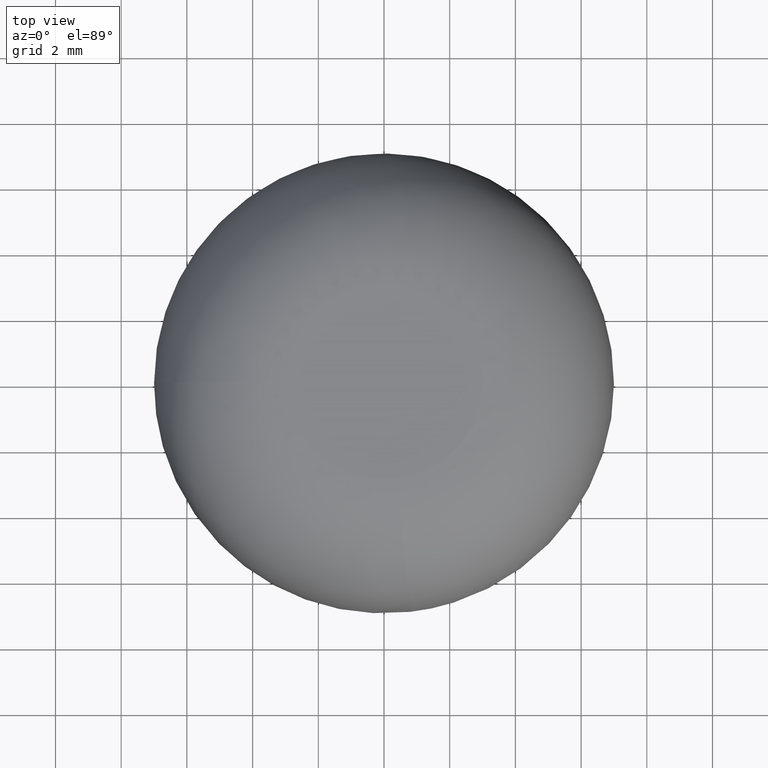
[diagram: clean part render]
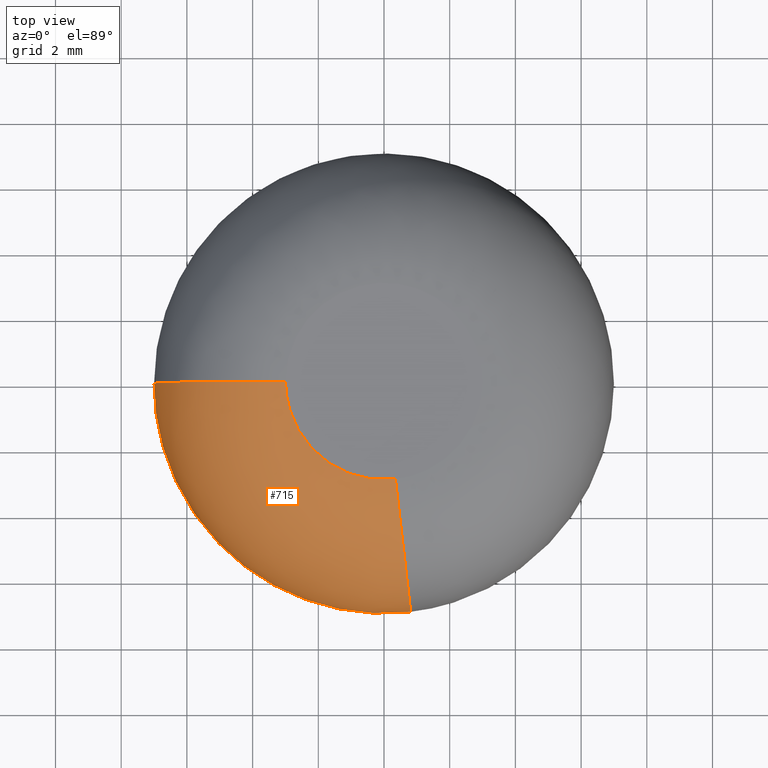
[diagram: same view with one face highlighted and labeled with its STEP entity id]
A machine part, top view. The second image highlights one B-rep face of the part: STEP entity #715.
In plain terms, the highlighted face is a freeform B-spline surface patch.
Its self-contained STEP definition (entity closure, byte-faithful):
#602=CARTESIAN_POINT('',(0.806954198958936,-6.942044220110153,5.900712580109018));
#603=CARTESIAN_POINT('',(0.808248821267288,-6.953181562631603,6.050146263777082));
#604=CARTESIAN_POINT('',(0.808248821267288,-6.953181562631602,6.200000000000000));
#605=CARTESIAN_POINT('',(0.808248821267288,-6.953181562631604,8.964321978561884));
#606=CARTESIAN_POINT('',(0.509683272658590,-4.384689765058708,9.941657386773940));
#607=CARTESIAN_POINT('',(0.412667969040947,-3.550089079406459,10.259230836911797));
#608=CARTESIAN_POINT('',(0.309289451756118,-2.660747107673029,10.187071919673683));
#609=CARTESIAN_POINT('',(0.404830924571384,-6.988787665481204,5.900712580109015));
#610=CARTESIAN_POINT('',(0.405480407710251,-6.999999999999999,6.050146263777081));
#611=CARTESIAN_POINT('',(0.405480407710251,-7.0,6.200000000000000));
#612=CARTESIAN_POINT('',(0.405480407710251,-7.000000000000003,8.964321978561880));
#613=CARTESIAN_POINT('',(0.255696730713023,-4.414213562373094,9.941657386773940));
#614=CARTESIAN_POINT('',(0.207026316565884,-3.573993190311556,10.259230836911795));
#615=CARTESIAN_POINT('',(0.155163620037099,-2.678662938101394,10.187071919673681));
#616=CARTESIAN_POINT('',(0.0,-6.988787665481205,5.900712580109015));
#617=CARTESIAN_POINT('',(0.0,-7.0,6.050146263777080));
#618=CARTESIAN_POINT('',(0.0,-7.0,6.200000000000000));
#619=CARTESIAN_POINT('',(0.0,-7.000000000000002,8.964321978561882));
#620=CARTESIAN_POINT('',(0.0,-4.414213562373095,9.941657386773940));
#621=CARTESIAN_POINT('',(0.0,-3.573993190311557,10.259230836911797));
#622=CARTESIAN_POINT('',(0.0,-2.678662938101394,10.187071919673683));
#623=CARTESIAN_POINT('',(-6.988787665481203,-6.988787665481203,5.900712580109016));
#624=CARTESIAN_POINT('',(-6.999999999999998,-6.999999999999998,6.050146263777080));
#625=CARTESIAN_POINT('',(-6.999999999999999,-6.999999999999999,6.200000000000000));
#626=CARTESIAN_POINT('',(-7.0,-7.0,8.964321978561884));
#627=CARTESIAN_POINT('',(-4.414213562373095,-4.414213562373095,9.941657386773938));
#628=CARTESIAN_POINT('',(-3.573993190311556,-3.573993190311556,10.259230836911799));
#629=CARTESIAN_POINT('',(-2.678662938101394,-2.678662938101394,10.187071919673681));
#630=CARTESIAN_POINT('',(-6.988787665481205,0.0,5.900712580109015));
#631=CARTESIAN_POINT('',(-7.0,0.0,6.050146263777080));
#632=CARTESIAN_POINT('',(-7.0,0.0,6.200000000000000));
#633=CARTESIAN_POINT('',(-7.000000000000002,0.0,8.964321978561882));
#634=CARTESIAN_POINT('',(-4.414213562373095,0.0,9.941657386773940));
#635=CARTESIAN_POINT('',(-3.573993190311557,0.0,10.259230836911797));
#636=CARTESIAN_POINT('',(-2.678662938101394,0.0,10.187071919673683));
#644=(BOUNDED_SURFACE()B_SPLINE_SURFACE(2,2,((#602,#609,#616,#623,#630),(#603,#610,#617,#624,#631),(#604,#611,#618,#625,#632),(#605,#612,#619,#626,#633),(#606,#613,#620,#627,#634),(#607,#614,#621,#628,#635),(#608,#615,#622,#629,#636)),.UNSPECIFIED.,.F.,.F.,.U.)B_SPLINE_SURFACE_WITH_KNOTS((3,2,2,3),(3,2,3),(0.0,0.325068791231680,5.315804910756384,7.158021290805312),(0.0,0.927837494860101,12.525817241306759),.UNSPECIFIED.)GEOMETRIC_REPRESENTATION_ITEM()RATIONAL_B_SPLINE_SURFACE(((0.936220649157617,0.955477984758752,0.978403380119462,0.691835664818311,0.978403380119462),(0.945833493504668,0.965288557888904,0.988449344615309,0.698939234436884,0.988449344615309),(0.956886155731908,0.976568564840903,1.0,0.707106781186548,1.0),(0.787196163698553,0.803388180742728,0.822664388008036,0.581711567401163,0.822664388008036),(0.956886155731908,0.976568564840903,1.0,0.707106781186548,1.0),(0.894248966474146,0.912642976982091,0.934540604561415,0.660819998779552,0.934540604561415),(0.877853956040242,0.895910733847334,0.917406893998570,0.648704635853677,0.917406893998570)))REPRESENTATION_ITEM('')SURFACE());
#645=CARTESIAN_POINT('',(0.346392114872776,-2.979934009164752,10.199999999999770));
#646=VERTEX_POINT('',#645);
#647=CARTESIAN_POINT('',(-3.000000384556083,0.0,10.199999999999960));
#648=VERTEX_POINT('',#647);
#649=CARTESIAN_POINT('',(0.346392114872776,-2.979934009164752,10.199999999999767));
#650=CARTESIAN_POINT('',(0.173777254250531,-3.000000000000000,10.200000000000001));
#651=CARTESIAN_POINT('',(0.0,-3.0,10.199999999999999));
#652=CARTESIAN_POINT('',(-3.0,-3.0,10.200000000000001));
#653=CARTESIAN_POINT('',(-3.000000384556083,0.0,10.199999999999960));
#661=(BOUNDED_CURVE()B_SPLINE_CURVE(2,(#649,#650,#651,#652,#653),.UNSPECIFIED.,.F.,.U.)B_SPLINE_CURVE_WITH_KNOTS((3,2,3),(0.730000026192411,0.750000000000000,1.0),.UNSPECIFIED.)CURVE()GEOMETRIC_REPRESENTATION_ITEM()RATIONAL_B_SPLINE_CURVE((0.956886169743681,0.976568573181242,1.0,0.707106781186548,1.0))REPRESENTATION_ITEM(''));
#662=EDGE_CURVE('',#646,#648,#661,.T.);
#663=ORIENTED_EDGE('',*,*,#662,.T.);
#664=CARTESIAN_POINT('',(-7.0,0.0,6.199999999999989));
#665=VERTEX_POINT('',#664);
#666=CARTESIAN_POINT('',(-6.999999999999998,0.0,6.199999999999975));
#667=CARTESIAN_POINT('',(-7.000000000000018,0.0,8.964321978561877));
#668=CARTESIAN_POINT('',(-4.414213562373095,0.0,9.941657386773940));
#669=CARTESIAN_POINT('',(-3.730703626449663,0.0,10.199999859501812));
#670=CARTESIAN_POINT('',(-3.000000384556083,0.0,10.199999999999964));
#678=(BOUNDED_CURVE()B_SPLINE_CURVE(2,(#666,#667,#668,#669,#670),.UNSPECIFIED.,.F.,.U.)B_SPLINE_CURVE_WITH_KNOTS((3,2,3),(0.499999999999999,0.750000000000000,0.825998069180932),.UNSPECIFIED.)CURVE()GEOMETRIC_REPRESENTATION_ITEM()RATIONAL_B_SPLINE_CURVE((1.000000000000002,0.822664388008035,1.0,0.946091343566368,0.924958317541489))REPRESENTATION_ITEM(''));
#679=EDGE_CURVE('',#665,#648,#678,.T.);
#680=ORIENTED_EDGE('',*,*,#679,.F.);
#681=CARTESIAN_POINT('',(0.808249330410697,-6.953181503447942,6.199999997219420));
#682=VERTEX_POINT('',#681);
#683=CARTESIAN_POINT('',(0.808249330410697,-6.953181503447942,6.199999997219419));
#684=CARTESIAN_POINT('',(0.405480526026914,-7.000000000000001,6.200000000000001));
#685=CARTESIAN_POINT('',(0.0,-7.0,6.200000000000000));
#686=CARTESIAN_POINT('',(-6.999999999999999,-6.999999999999999,6.199999999999999));
#687=CARTESIAN_POINT('',(-7.0,0.0,6.200000000000000));
#695=(BOUNDED_CURVE()B_SPLINE_CURVE(2,(#683,#684,#685,#686,#687),.UNSPECIFIED.,.F.,.U.)B_SPLINE_CURVE_WITH_KNOTS((3,2,3),(0.730000013374359,0.750000000000000,1.0),.UNSPECIFIED.)CURVE()GEOMETRIC_REPRESENTATION_ITEM()RATIONAL_B_SPLINE_CURVE((0.956886144514642,0.976568558163960,1.0,0.707106781186547,1.0))REPRESENTATION_ITEM(''));
#696=EDGE_CURVE('',#682,#665,#695,.T.);
#697=ORIENTED_EDGE('',*,*,#696,.F.);
#698=CARTESIAN_POINT('',(0.808249330410697,-6.953181503447942,6.199999997219420));
#699=CARTESIAN_POINT('',(0.808249605733270,-6.953181475313077,8.964321977109282));
#700=CARTESIAN_POINT('',(0.509683767064527,-4.384689707588152,9.941657386773938));
#701=CARTESIAN_POINT('',(0.430762722174464,-3.705750499391332,10.200000176701661));
#702=CARTESIAN_POINT('',(0.346392114872776,-2.979934009164752,10.199999999999768));
#710=(BOUNDED_CURVE()B_SPLINE_CURVE(2,(#698,#699,#700,#701,#702),.UNSPECIFIED.,.F.,.U.)B_SPLINE_CURVE_WITH_KNOTS((3,2,3),(0.499999999694322,0.750000000000000,0.825998157463053),.UNSPECIFIED.)CURVE()GEOMETRIC_REPRESENTATION_ITEM()RATIONAL_B_SPLINE_CURVE((0.956886118605624,0.787196132607223,0.956886118190660,0.905301613276640,0.885079726979495))REPRESENTATION_ITEM(''));
#711=EDGE_CURVE('',#682,#646,#710,.T.);
#712=ORIENTED_EDGE('',*,*,#711,.T.);
#713=EDGE_LOOP('',(#663,#680,#697,#712));
#714=FACE_OUTER_BOUND('',#713,.T.);
#715=ADVANCED_FACE('',(#714),#644,.T.);